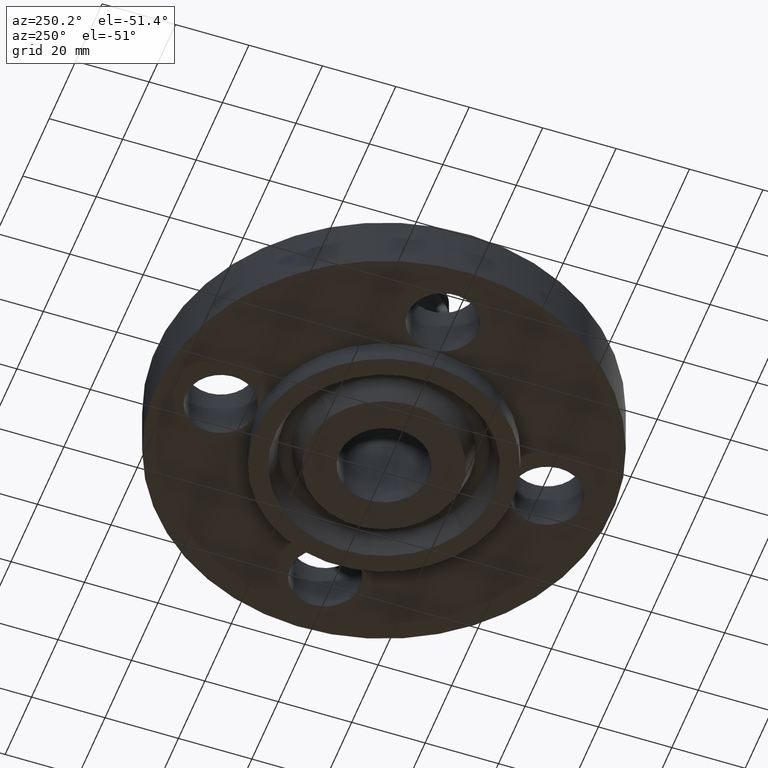
[diagram: clean part render]
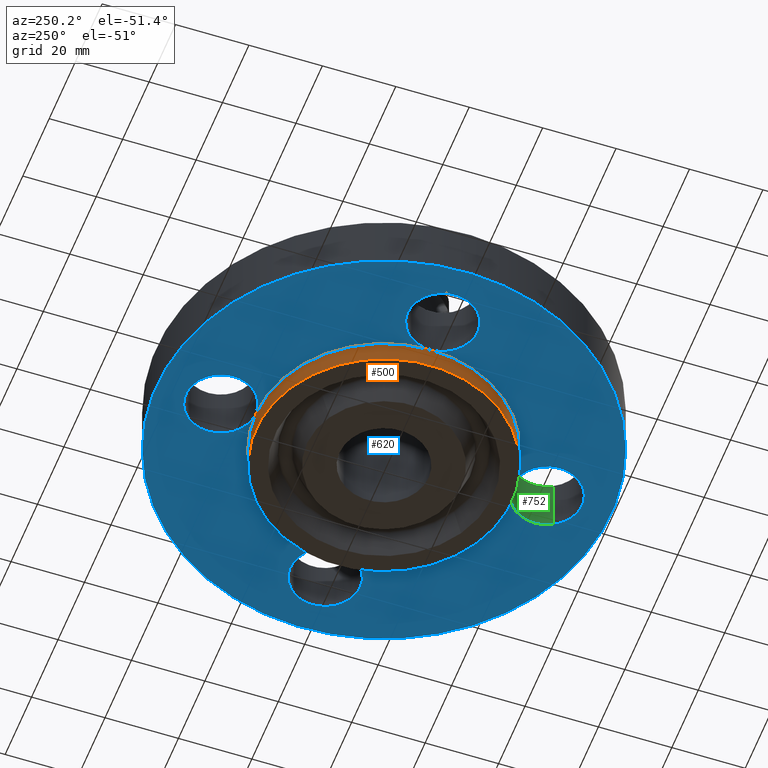
[diagram: same view with three faces highlighted in distinct colors, each labeled with its STEP entity id]
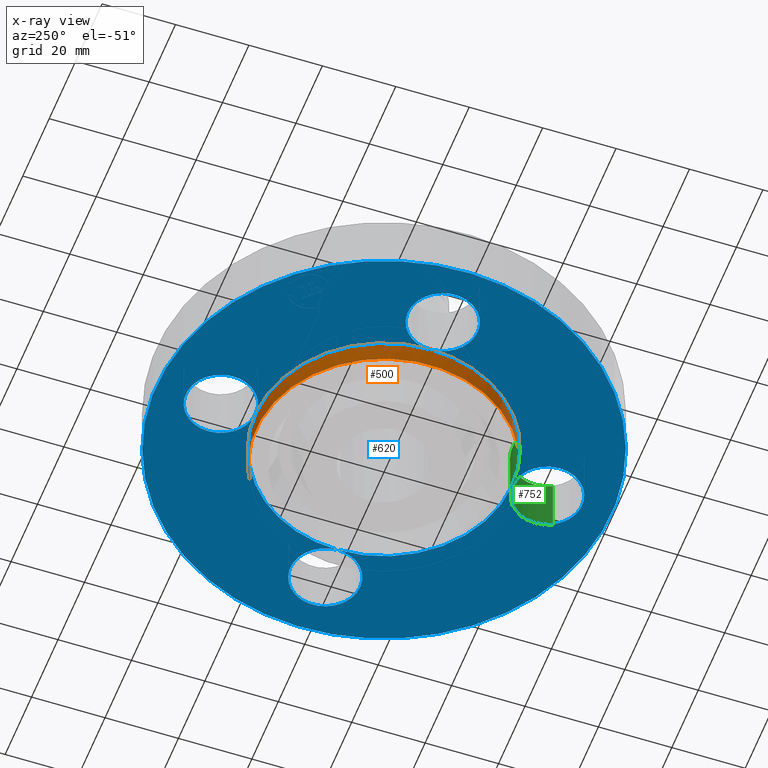
[diagram: x-ray of the same camera — body ghosted, the three highlighted faces saturated]
A machine part, auxiliary view with three faces highlighted in distinct colors.
The next image is the same camera in x-ray (body ghosted, the three faces saturated) — at least one of them is partly hidden behind the body in this view.
Their STEP definitions:

[orange] entity #500 — the highlighted cylindrical surface (partial cylindrical patch) has radius 34.925 mm, axis along (0, 0, -1).
#450=AXIS2_PLACEMENT_3D('Cylinder Axis2P3D',#447,#448,#449) ;
#454=AXIS2_PLACEMENT_3D('Circle Axis2P3D',#452,#453,$) ;
#470=AXIS2_PLACEMENT_3D('Circle Axis2P3D',#468,#469,$) ;
#477=AXIS2_PLACEMENT_3D('Circle Axis2P3D',#475,#476,$) ;
#482=AXIS2_PLACEMENT_3D('Circle Axis2P3D',#480,#481,$) ;
#87=CARTESIAN_POINT('Vertex',(-5.47434258046E-015,1.37500000001,1.39870617276E-016)) ;
#447=CARTESIAN_POINT('Axis2P3D Location',(0.,0.,1.065)) ;
#452=CARTESIAN_POINT('Axis2P3D Location',(0.,0.,-0.250000000001)) ;
#456=CARTESIAN_POINT('Vertex',(-0.659210115583,-1.2066760226,-0.250000000001)) ;
#458=CARTESIAN_POINT('Vertex',(0.659210115583,1.2066760226,-0.250000000001)) ;
#461=CARTESIAN_POINT('Line Origine',(-0.659210115583,-1.2066760226,-0.125)) ;
#465=CARTESIAN_POINT('Vertex',(-0.659210115583,-1.2066760226,1.39870617276E-016)) ;
#468=CARTESIAN_POINT('Axis2P3D Location',(0.,0.,1.39870617276E-016)) ;
#472=CARTESIAN_POINT('Vertex',(-1.37500000001,-2.79741234551E-016,0.)) ;
#475=CARTESIAN_POINT('Axis2P3D Location',(0.,0.,1.39870617276E-016)) ;
#480=CARTESIAN_POINT('Axis2P3D Location',(0.,0.,1.39870617276E-016)) ;
#484=CARTESIAN_POINT('Vertex',(0.659210115583,1.2066760226,1.39870617276E-016)) ;
#487=CARTESIAN_POINT('Line Origine',(0.659210115583,1.2066760226,-0.125)) ;
#448=DIRECTION('Axis2P3D Direction',(0.,0.,-0.0393700787402)) ;
#449=DIRECTION('Axis2P3D XDirection',(0.0188750212049,0.0345504945626,0.)) ;
#453=DIRECTION('Axis2P3D Direction',(0.,0.,-0.0393700787402)) ;
#462=DIRECTION('Vector Direction',(0.,0.,-0.0393700787402)) ;
#469=DIRECTION('Axis2P3D Direction',(0.,0.,-0.0393700787402)) ;
#476=DIRECTION('Axis2P3D Direction',(0.,0.,-0.0393700787402)) ;
#481=DIRECTION('Axis2P3D Direction',(0.,0.,-0.0393700787402)) ;
#488=DIRECTION('Vector Direction',(0.,0.,-0.0393700787402)) ;
#463=VECTOR('Line Direction',#462,0.0393700787402) ;
#489=VECTOR('Line Direction',#488,0.0393700787402) ;
#493=ORIENTED_EDGE('',*,*,#460,.F.) ;
#494=ORIENTED_EDGE('',*,*,#467,.T.) ;
#495=ORIENTED_EDGE('',*,*,#474,.T.) ;
#496=ORIENTED_EDGE('',*,*,#479,.T.) ;
#497=ORIENTED_EDGE('',*,*,#486,.T.) ;
#498=ORIENTED_EDGE('',*,*,#491,.F.) ;
#500=ADVANCED_FACE('PartBody',(#499),#451,.T.) ;
#455=CIRCLE('generated circle',#454,1.37500000001) ;
#471=CIRCLE('generated circle',#470,1.37500000001) ;
#478=CIRCLE('generated circle',#477,1.37500000001) ;
#483=CIRCLE('generated circle',#482,1.37500000001) ;
#451=CYLINDRICAL_SURFACE('generated cylinder',#450,1.37500000001) ;
#460=EDGE_CURVE('',#457,#459,#455,.T.) ;
#467=EDGE_CURVE('',#457,#466,#464,.F.) ;
#474=EDGE_CURVE('',#466,#473,#471,.T.) ;
#479=EDGE_CURVE('',#473,#88,#478,.T.) ;
#486=EDGE_CURVE('',#88,#485,#483,.T.) ;
#491=EDGE_CURVE('',#459,#485,#490,.F.) ;
#492=EDGE_LOOP('',(#493,#494,#495,#496,#497,#498)) ;
#499=FACE_OUTER_BOUND('',#492,.T.) ;
#464=LINE('Line',#461,#463) ;
#490=LINE('Line',#487,#489) ;
#88=VERTEX_POINT('',#87) ;
#457=VERTEX_POINT('',#456) ;
#459=VERTEX_POINT('',#458) ;
#466=VERTEX_POINT('',#465) ;
#473=VERTEX_POINT('',#472) ;
#485=VERTEX_POINT('',#484) ;

[blue] entity #620 — the highlighted planar face has unit normal (0, 0, -1).
#51=AXIS2_PLACEMENT_3D('Circle Axis2P3D',#49,#50,$) ;
#85=AXIS2_PLACEMENT_3D('Circle Axis2P3D',#83,#84,$) ;
#92=AXIS2_PLACEMENT_3D('Circle Axis2P3D',#90,#91,$) ;
#122=AXIS2_PLACEMENT_3D('Circle Axis2P3D',#120,#121,$) ;
#157=AXIS2_PLACEMENT_3D('Circle Axis2P3D',#155,#156,$) ;
#470=AXIS2_PLACEMENT_3D('Circle Axis2P3D',#468,#469,$) ;
#477=AXIS2_PLACEMENT_3D('Circle Axis2P3D',#475,#476,$) ;
#482=AXIS2_PLACEMENT_3D('Circle Axis2P3D',#480,#481,$) ;
#508=AXIS2_PLACEMENT_3D('Circle Axis2P3D',#506,#507,$) ;
#515=AXIS2_PLACEMENT_3D('Circle Axis2P3D',#513,#514,$) ;
#522=AXIS2_PLACEMENT_3D('Circle Axis2P3D',#520,#521,$) ;
#537=AXIS2_PLACEMENT_3D('Plane Axis2P3D',#534,#535,#536) ;
#545=AXIS2_PLACEMENT_3D('Circle Axis2P3D',#543,#544,$) ;
#552=AXIS2_PLACEMENT_3D('Circle Axis2P3D',#550,#551,$) ;
#559=AXIS2_PLACEMENT_3D('Circle Axis2P3D',#557,#558,$) ;
#564=AXIS2_PLACEMENT_3D('Circle Axis2P3D',#562,#563,$) ;
#571=AXIS2_PLACEMENT_3D('Circle Axis2P3D',#569,#570,$) ;
#578=AXIS2_PLACEMENT_3D('Circle Axis2P3D',#576,#577,$) ;
#583=AXIS2_PLACEMENT_3D('Circle Axis2P3D',#581,#582,$) ;
#590=AXIS2_PLACEMENT_3D('Circle Axis2P3D',#588,#589,$) ;
#597=AXIS2_PLACEMENT_3D('Circle Axis2P3D',#595,#596,$) ;
#44=CARTESIAN_POINT('Vertex',(-0.32909346071,1.92978457698,0.)) ;
#49=CARTESIAN_POINT('Axis2P3D Location',(0.,1.75000000001,0.)) ;
#53=CARTESIAN_POINT('Vertex',(0.32909346071,1.57021542303,0.)) ;
#83=CARTESIAN_POINT('Axis2P3D Location',(0.,1.75000000001,0.)) ;
#87=CARTESIAN_POINT('Vertex',(-5.47434258046E-015,1.37500000001,1.39870617276E-016)) ;
#90=CARTESIAN_POINT('Axis2P3D Location',(0.,1.75000000001,0.)) ;
#120=CARTESIAN_POINT('Axis2P3D Location',(0.,0.,1.39870617276E-016)) ;
#124=CARTESIAN_POINT('Vertex',(-1.1697983142,-2.14130145102,2.79741234551E-016)) ;
#126=CARTESIAN_POINT('Vertex',(1.1697983142,2.14130145102,2.79741234551E-016)) ;
#155=CARTESIAN_POINT('Axis2P3D Location',(0.,0.,1.39870617276E-016)) ;
#465=CARTESIAN_POINT('Vertex',(-0.659210115583,-1.2066760226,1.39870617276E-016)) ;
#468=CARTESIAN_POINT('Axis2P3D Location',(0.,0.,1.39870617276E-016)) ;
#472=CARTESIAN_POINT('Vertex',(-1.37500000001,-2.79741234551E-016,0.)) ;
#475=CARTESIAN_POINT('Axis2P3D Location',(0.,0.,1.39870617276E-016)) ;
#480=CARTESIAN_POINT('Axis2P3D Location',(0.,0.,1.39870617276E-016)) ;
#484=CARTESIAN_POINT('Vertex',(0.659210115583,1.2066760226,1.39870617276E-016)) ;
#506=CARTESIAN_POINT('Axis2P3D Location',(0.,0.,1.39870617276E-016)) ;
#510=CARTESIAN_POINT('Vertex',(1.37500000001,0.,0.)) ;
#513=CARTESIAN_POINT('Axis2P3D Location',(0.,0.,1.39870617276E-016)) ;
#517=CARTESIAN_POINT('Vertex',(2.02112938519E-016,-1.37500000001,0.)) ;
#520=CARTESIAN_POINT('Axis2P3D Location',(0.,0.,1.39870617276E-016)) ;
#534=CARTESIAN_POINT('Axis2P3D Location',(0.,1.37500000001,0.)) ;
#543=CARTESIAN_POINT('Axis2P3D Location',(2.70999320971E-016,-1.75000000001,0.)) ;
#547=CARTESIAN_POINT('Vertex',(-0.32909346071,-1.57021542303,0.)) ;
#550=CARTESIAN_POINT('Axis2P3D Location',(4.02128024667E-016,-1.75000000001,0.)) ;
#554=CARTESIAN_POINT('Vertex',(0.32909346071,-1.92978457698,0.)) ;
#557=CARTESIAN_POINT('Axis2P3D Location',(2.70999320971E-016,-1.75000000001,0.)) ;
#562=CARTESIAN_POINT('Axis2P3D Location',(1.75000000001,0.,0.)) ;
#566=CARTESIAN_POINT('Vertex',(1.57021542303,-0.32909346071,0.)) ;
#569=CARTESIAN_POINT('Axis2P3D Location',(1.75000000001,-2.79741234551E-016,0.)) ;
#573=CARTESIAN_POINT('Vertex',(1.92978457698,0.32909346071,0.)) ;
#576=CARTESIAN_POINT('Axis2P3D Location',(1.75000000001,0.,0.)) ;
#581=CARTESIAN_POINT('Axis2P3D Location',(-1.75000000001,-2.79741234551E-016,0.)) ;
#585=CARTESIAN_POINT('Vertex',(-1.57021542303,0.32909346071,0.)) ;
#588=CARTESIAN_POINT('Axis2P3D Location',(-1.75000000001,-2.79741234551E-016,0.)) ;
#592=CARTESIAN_POINT('Vertex',(-1.92978457698,-0.32909346071,0.)) ;
#595=CARTESIAN_POINT('Axis2P3D Location',(-1.75000000001,-2.79741234551E-016,0.)) ;
#50=DIRECTION('Axis2P3D Direction',(0.,-0.,-0.0393700787402)) ;
#84=DIRECTION('Axis2P3D Direction',(0.,-0.,-0.0393700787402)) ;
#91=DIRECTION('Axis2P3D Direction',(0.,-0.,-0.0393700787402)) ;
#121=DIRECTION('Axis2P3D Direction',(0.,0.,-0.0393700787402)) ;
#156=DIRECTION('Axis2P3D Direction',(0.,0.,-0.0393700787402)) ;
#469=DIRECTION('Axis2P3D Direction',(0.,0.,-0.0393700787402)) ;
#476=DIRECTION('Axis2P3D Direction',(0.,0.,-0.0393700787402)) ;
#481=DIRECTION('Axis2P3D Direction',(0.,0.,-0.0393700787402)) ;
#507=DIRECTION('Axis2P3D Direction',(0.,0.,-0.0393700787402)) ;
#514=DIRECTION('Axis2P3D Direction',(0.,0.,-0.0393700787402)) ;
#521=DIRECTION('Axis2P3D Direction',(0.,0.,-0.0393700787402)) ;
#535=DIRECTION('Axis2P3D Direction',(0.,0.,-0.0393700787402)) ;
#536=DIRECTION('Axis2P3D XDirection',(0.0393700787402,0.,0.)) ;
#544=DIRECTION('Axis2P3D Direction',(0.,0.,-0.0393700787402)) ;
#551=DIRECTION('Axis2P3D Direction',(0.,0.,-0.0393700787402)) ;
#558=DIRECTION('Axis2P3D Direction',(0.,0.,-0.0393700787402)) ;
#563=DIRECTION('Axis2P3D Direction',(0.,0.,-0.0393700787402)) ;
#570=DIRECTION('Axis2P3D Direction',(0.,0.,-0.0393700787402)) ;
#577=DIRECTION('Axis2P3D Direction',(0.,0.,-0.0393700787402)) ;
#582=DIRECTION('Axis2P3D Direction',(0.,0.,-0.0393700787402)) ;
#589=DIRECTION('Axis2P3D Direction',(0.,0.,-0.0393700787402)) ;
#596=DIRECTION('Axis2P3D Direction',(0.,0.,-0.0393700787402)) ;
#540=ORIENTED_EDGE('',*,*,#128,.T.) ;
#541=ORIENTED_EDGE('',*,*,#159,.T.) ;
#601=ORIENTED_EDGE('',*,*,#549,.F.) ;
#602=ORIENTED_EDGE('',*,*,#556,.F.) ;
#603=ORIENTED_EDGE('',*,*,#561,.F.) ;
#604=ORIENTED_EDGE('',*,*,#519,.F.) ;
#605=ORIENTED_EDGE('',*,*,#568,.F.) ;
#606=ORIENTED_EDGE('',*,*,#575,.F.) ;
#607=ORIENTED_EDGE('',*,*,#580,.F.) ;
#608=ORIENTED_EDGE('',*,*,#512,.F.) ;
#609=ORIENTED_EDGE('',*,*,#486,.F.) ;
#610=ORIENTED_EDGE('',*,*,#89,.F.) ;
#611=ORIENTED_EDGE('',*,*,#55,.F.) ;
#612=ORIENTED_EDGE('',*,*,#94,.F.) ;
#613=ORIENTED_EDGE('',*,*,#479,.F.) ;
#614=ORIENTED_EDGE('',*,*,#587,.F.) ;
#615=ORIENTED_EDGE('',*,*,#594,.F.) ;
#616=ORIENTED_EDGE('',*,*,#599,.F.) ;
#617=ORIENTED_EDGE('',*,*,#474,.F.) ;
#618=ORIENTED_EDGE('',*,*,#524,.F.) ;
#619=FACE_BOUND('',#600,.T.) ;
#620=ADVANCED_FACE('PartBody',(#542,#619),#538,.T.) ;
#52=CIRCLE('generated circle',#51,0.375000000001) ;
#86=CIRCLE('generated circle',#85,0.375000000001) ;
#93=CIRCLE('generated circle',#92,0.375000000001) ;
#123=CIRCLE('generated circle',#122,2.44000000001) ;
#158=CIRCLE('generated circle',#157,2.44000000001) ;
#471=CIRCLE('generated circle',#470,1.37500000001) ;
#478=CIRCLE('generated circle',#477,1.37500000001) ;
#483=CIRCLE('generated circle',#482,1.37500000001) ;
#509=CIRCLE('generated circle',#508,1.37500000001) ;
#516=CIRCLE('generated circle',#515,1.37500000001) ;
#523=CIRCLE('generated circle',#522,1.37500000001) ;
#546=CIRCLE('generated circle',#545,0.375000000001) ;
#553=CIRCLE('generated circle',#552,0.375000000001) ;
#560=CIRCLE('generated circle',#559,0.375000000001) ;
#565=CIRCLE('generated circle',#564,0.375000000001) ;
#572=CIRCLE('generated circle',#571,0.375000000001) ;
#579=CIRCLE('generated circle',#578,0.375000000001) ;
#584=CIRCLE('generated circle',#583,0.375000000001) ;
#591=CIRCLE('generated circle',#590,0.375000000001) ;
#598=CIRCLE('generated circle',#597,0.375000000001) ;
#55=EDGE_CURVE('',#45,#54,#52,.T.) ;
#89=EDGE_CURVE('',#54,#88,#86,.T.) ;
#94=EDGE_CURVE('',#88,#45,#93,.T.) ;
#128=EDGE_CURVE('',#125,#127,#123,.T.) ;
#159=EDGE_CURVE('',#127,#125,#158,.T.) ;
#474=EDGE_CURVE('',#466,#473,#471,.T.) ;
#479=EDGE_CURVE('',#473,#88,#478,.T.) ;
#486=EDGE_CURVE('',#88,#485,#483,.T.) ;
#512=EDGE_CURVE('',#485,#511,#509,.T.) ;
#519=EDGE_CURVE('',#511,#518,#516,.T.) ;
#524=EDGE_CURVE('',#518,#466,#523,.T.) ;
#549=EDGE_CURVE('',#548,#518,#546,.T.) ;
#556=EDGE_CURVE('',#555,#548,#553,.T.) ;
#561=EDGE_CURVE('',#518,#555,#560,.T.) ;
#568=EDGE_CURVE('',#567,#511,#565,.T.) ;
#575=EDGE_CURVE('',#574,#567,#572,.T.) ;
#580=EDGE_CURVE('',#511,#574,#579,.T.) ;
#587=EDGE_CURVE('',#586,#473,#584,.T.) ;
#594=EDGE_CURVE('',#593,#586,#591,.T.) ;
#599=EDGE_CURVE('',#473,#593,#598,.T.) ;
#539=EDGE_LOOP('',(#540,#541)) ;
#600=EDGE_LOOP('',(#601,#602,#603,#604,#605,#606,#607,#608,#609,#610,#611,#612,#613,#614,#615,#616,#617,#618)) ;
#542=FACE_OUTER_BOUND('',#539,.T.) ;
#538=PLANE('',#537) ;
#45=VERTEX_POINT('',#44) ;
#54=VERTEX_POINT('',#53) ;
#88=VERTEX_POINT('',#87) ;
#125=VERTEX_POINT('',#124) ;
#127=VERTEX_POINT('',#126) ;
#466=VERTEX_POINT('',#465) ;
#473=VERTEX_POINT('',#472) ;
#485=VERTEX_POINT('',#484) ;
#511=VERTEX_POINT('',#510) ;
#518=VERTEX_POINT('',#517) ;
#548=VERTEX_POINT('',#547) ;
#555=VERTEX_POINT('',#554) ;
#567=VERTEX_POINT('',#566) ;
#574=VERTEX_POINT('',#573) ;
#586=VERTEX_POINT('',#585) ;
#593=VERTEX_POINT('',#592) ;

[green] entity #752 — the highlighted cylindrical surface (partial cylindrical patch) has radius 9.525 mm, axis along (-0, 0, -1).
#545=AXIS2_PLACEMENT_3D('Circle Axis2P3D',#543,#544,$) ;
#559=AXIS2_PLACEMENT_3D('Circle Axis2P3D',#557,#558,$) ;
#712=AXIS2_PLACEMENT_3D('Cylinder Axis2P3D',#709,#710,#711) ;
#742=AXIS2_PLACEMENT_3D('Circle Axis2P3D',#740,#741,$) ;
#517=CARTESIAN_POINT('Vertex',(2.02112938519E-016,-1.37500000001,0.)) ;
#543=CARTESIAN_POINT('Axis2P3D Location',(2.70999320971E-016,-1.75000000001,0.)) ;
#547=CARTESIAN_POINT('Vertex',(-0.32909346071,-1.57021542303,0.)) ;
#554=CARTESIAN_POINT('Vertex',(0.32909346071,-1.92978457698,0.)) ;
#557=CARTESIAN_POINT('Axis2P3D Location',(2.70999320971E-016,-1.75000000001,0.)) ;
#709=CARTESIAN_POINT('Axis2P3D Location',(2.14313189852E-016,-1.75000000001,0.616062992128)) ;
#714=CARTESIAN_POINT('Line Origine',(0.32909346071,-1.92978457698,0.310000000001)) ;
#718=CARTESIAN_POINT('Vertex',(0.32909346071,-1.92978457698,0.620000000002)) ;
#721=CARTESIAN_POINT('Line Origine',(-0.32909346071,-1.57021542303,0.310000000001)) ;
#725=CARTESIAN_POINT('Vertex',(-0.32909346071,-1.57021542303,0.620000000002)) ;
#740=CARTESIAN_POINT('Axis2P3D Location',(2.14313189852E-016,-1.75000000001,0.620000000002)) ;
#544=DIRECTION('Axis2P3D Direction',(0.,0.,-0.0393700787402)) ;
#558=DIRECTION('Axis2P3D Direction',(0.,0.,-0.0393700787402)) ;
#710=DIRECTION('Axis2P3D Direction',(-0.,0.,-0.0393700787402)) ;
#711=DIRECTION('Axis2P3D XDirection',(-0.0345504945626,0.0188750212049,0.)) ;
#715=DIRECTION('Vector Direction',(0.,0.,-0.0393700787402)) ;
#722=DIRECTION('Vector Direction',(0.,0.,-0.0393700787402)) ;
#741=DIRECTION('Axis2P3D Direction',(-0.,0.,-0.0393700787402)) ;
#716=VECTOR('Line Direction',#715,0.0393700787402) ;
#723=VECTOR('Line Direction',#722,0.0393700787402) ;
#746=ORIENTED_EDGE('',*,*,#727,.F.) ;
#747=ORIENTED_EDGE('',*,*,#549,.T.) ;
#748=ORIENTED_EDGE('',*,*,#561,.T.) ;
#749=ORIENTED_EDGE('',*,*,#720,.T.) ;
#750=ORIENTED_EDGE('',*,*,#744,.F.) ;
#752=ADVANCED_FACE('PartBody',(#751),#713,.F.) ;
#546=CIRCLE('generated circle',#545,0.375000000001) ;
#560=CIRCLE('generated circle',#559,0.375000000001) ;
#743=CIRCLE('generated circle',#742,0.375000000001) ;
#713=CYLINDRICAL_SURFACE('generated cylinder',#712,0.375000000001) ;
#549=EDGE_CURVE('',#548,#518,#546,.T.) ;
#561=EDGE_CURVE('',#518,#555,#560,.T.) ;
#720=EDGE_CURVE('',#555,#719,#717,.F.) ;
#727=EDGE_CURVE('',#548,#726,#724,.F.) ;
#744=EDGE_CURVE('',#726,#719,#743,.T.) ;
#745=EDGE_LOOP('',(#746,#747,#748,#749,#750)) ;
#751=FACE_OUTER_BOUND('',#745,.T.) ;
#717=LINE('Line',#714,#716) ;
#724=LINE('Line',#721,#723) ;
#518=VERTEX_POINT('',#517) ;
#548=VERTEX_POINT('',#547) ;
#555=VERTEX_POINT('',#554) ;
#719=VERTEX_POINT('',#718) ;
#726=VERTEX_POINT('',#725) ;